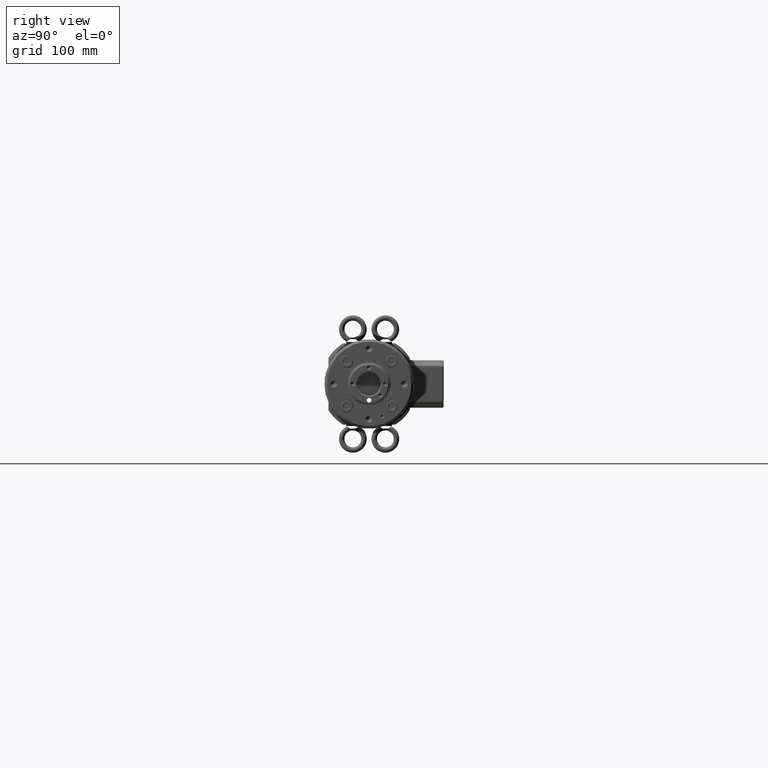
[diagram: clean part render]
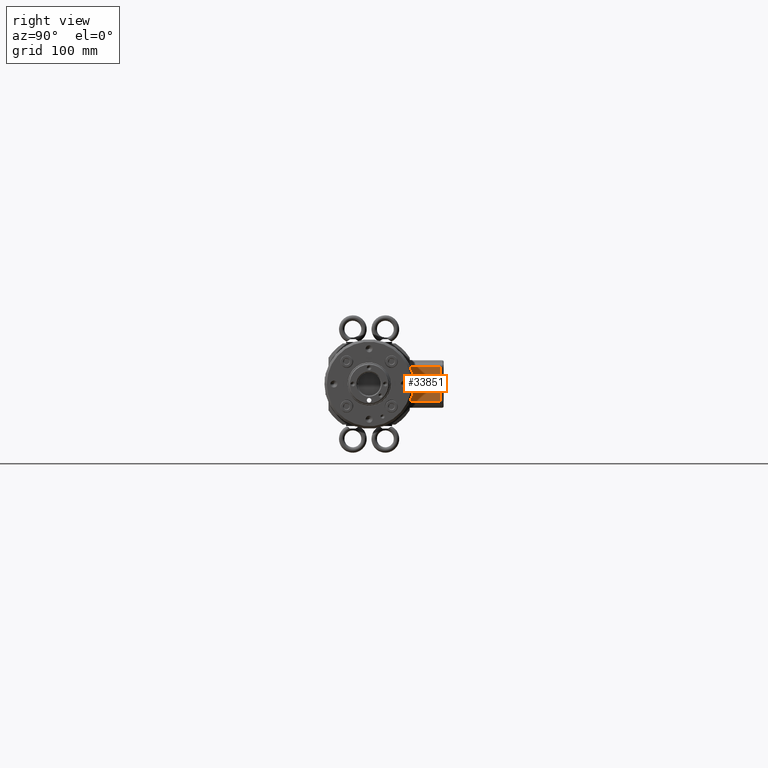
[diagram: same view with one face highlighted and labeled with its STEP entity id]
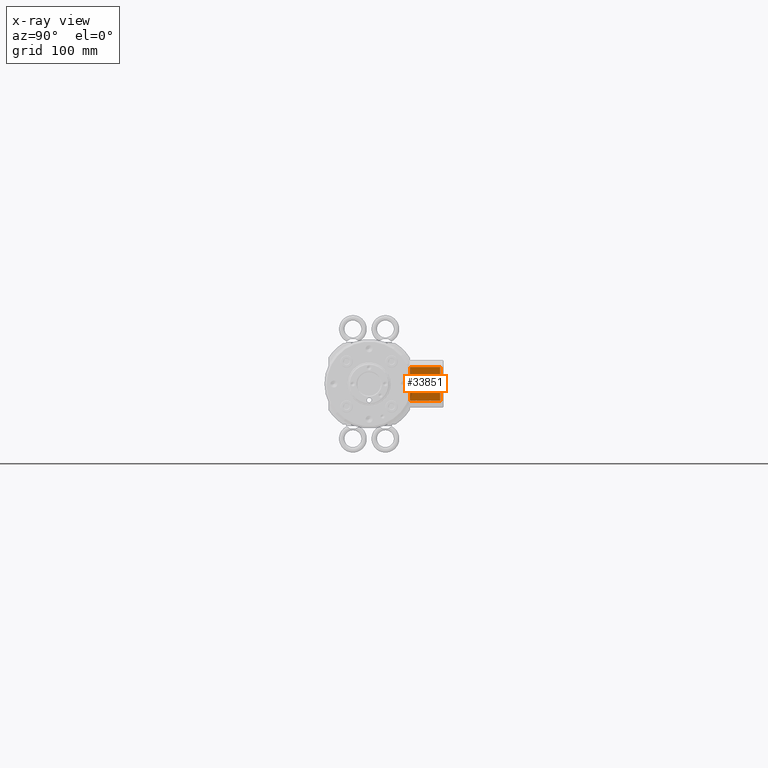
[diagram: x-ray of the same camera — body ghosted, the highlighted face saturated]
A machine part, right view. The second image highlights one B-rep face of the part: STEP entity #33851.
The next image is the same camera in x-ray: the body ghosted, the highlighted face saturated — about 9% of this face is hidden behind the body in this view.
In plain terms, the highlighted planar face has unit normal (1, 0, 0).
Its self-contained STEP definition (entity closure, byte-faithful):
#894=PLANE('',#36187);
#2494=FACE_OUTER_BOUND('',#4359,.T.);
#4359=EDGE_LOOP('',(#23411,#23412,#23413,#23414));
#8005=LINE('',#50196,#10685);
#8200=LINE('',#52034,#10880);
#8201=LINE('',#52037,#10881);
#8202=LINE('',#52038,#10882);
#10685=VECTOR('',#40089,10.);
#10880=VECTOR('',#41224,10.);
#10881=VECTOR('',#41227,10.);
#10882=VECTOR('',#41228,10.);
#13403=VERTEX_POINT('',#50092);
#13431=VERTEX_POINT('',#50192);
#13804=VERTEX_POINT('',#52032);
#13805=VERTEX_POINT('',#52036);
#16858=EDGE_CURVE('',#13403,#13431,#8005,.T.);
#17417=EDGE_CURVE('',#13804,#13431,#8200,.T.);
#17418=EDGE_CURVE('',#13804,#13805,#8201,.T.);
#17419=EDGE_CURVE('',#13805,#13403,#8202,.T.);
#23411=ORIENTED_EDGE('',*,*,#17418,.F.);
#23412=ORIENTED_EDGE('',*,*,#17417,.T.);
#23413=ORIENTED_EDGE('',*,*,#16858,.F.);
#23414=ORIENTED_EDGE('',*,*,#17419,.F.);
#33851=ADVANCED_FACE('',(#2494),#894,.T.);
#36187=AXIS2_PLACEMENT_3D('',#52035,#41225,#41226);
#40089=DIRECTION('',(1.74305014866148E-15,1.06883360669053E-15,-1.));
#41224=DIRECTION('',(-1.36330145842254E-16,1.,1.06883360669053E-15));
#41225=DIRECTION('center_axis',(1.,1.36330145842252E-16,1.74305014866148E-15));
#41226=DIRECTION('ref_axis',(1.74305014866148E-15,1.06883360669053E-15,
-1.));
#41227=DIRECTION('',(-1.74305014866148E-15,-1.06883360669053E-15,1.));
#41228=DIRECTION('',(-1.36330145842254E-16,1.,1.06883360669053E-15));
#50092=CARTESIAN_POINT('',(-29.0000000000012,105.,24.9999999999998));
#50192=CARTESIAN_POINT('',(-29.0000000000012,105.,-25.0000000000002));
#50196=CARTESIAN_POINT('',(-29.0000000000012,105.,24.9999999999998));
#52032=CARTESIAN_POINT('',(-29.0000000000012,59.9999999999999,-25.0000000000003));
#52034=CARTESIAN_POINT('',(-29.0000000000012,59.9999999999999,-25.0000000000003));
#52035=CARTESIAN_POINT('Origin',(-29.0000000000012,59.9999999999998,24.9999999999997));
#52036=CARTESIAN_POINT('',(-29.0000000000012,59.9999999999998,24.9999999999997));
#52037=CARTESIAN_POINT('',(-29.0000000000012,60.0000000000003,-17.5000000000001));
#52038=CARTESIAN_POINT('',(-29.0000000000012,59.9999999999998,24.9999999999997));